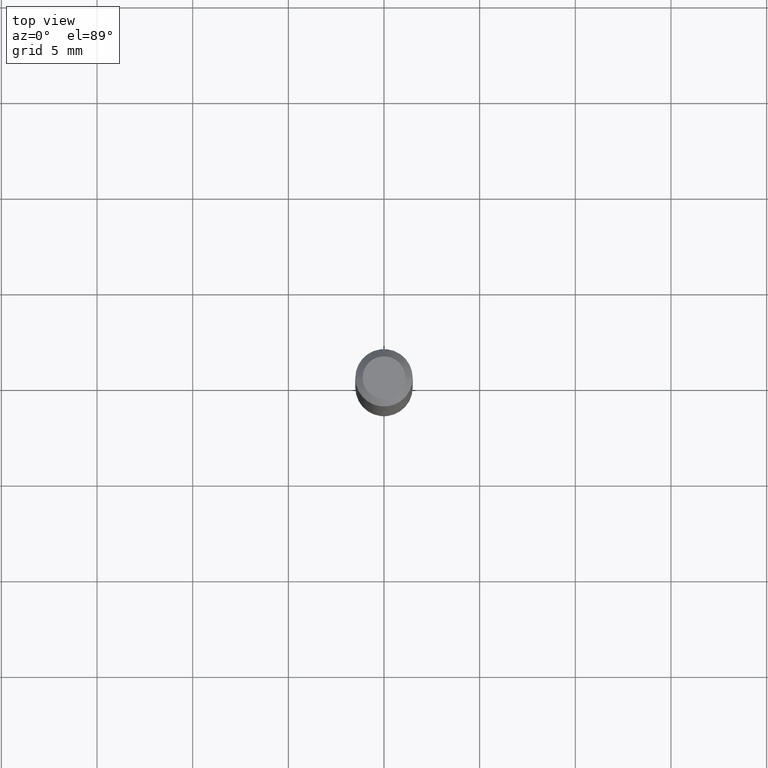
[diagram: clean part render]
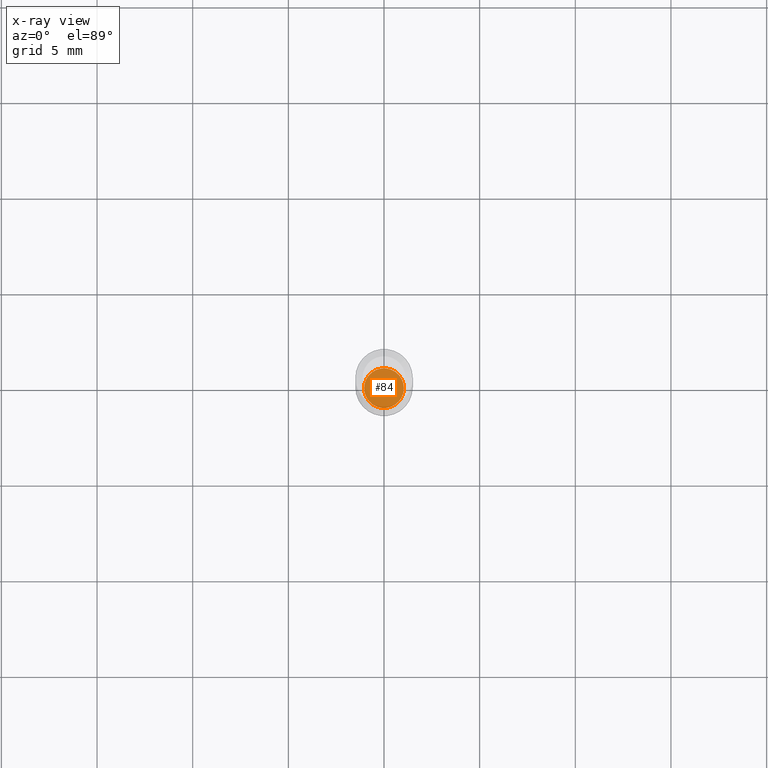
[diagram: x-ray — body ghosted, one internal face saturated and labeled with its STEP entity id]
A machine part, top view, then the same camera in x-ray: the body is ghosted and one INTERNAL B-rep face — a face not visible from any outside direction — is saturated and labeled: STEP entity #84.
In plain terms, the highlighted planar face has unit normal (-0, 0, 1).
Its self-contained STEP definition (entity closure, byte-faithful):
#4 = DIRECTION ( 'NONE',  ( 1.000000000000000000, -6.982962677686261189E-15, 0.000000000000000000 ) ) ;
#18 = ORIENTED_EDGE ( 'NONE', *, *, #231, .F. ) ;
#37 = AXIS2_PLACEMENT_3D ( 'NONE', #149, #181, #291 ) ;
#41 = DIRECTION ( 'NONE',  ( -2.445468806185136597E-29, 3.491481338843145583E-15, 1.000000000000000000 ) ) ;
#69 = CIRCLE ( 'NONE', #130, 0.04084999999999999742 ) ;
#84 = ADVANCED_FACE ( 'NONE', ( #85 ), #320, .F. ) ;
#85 = FACE_OUTER_BOUND ( 'NONE', #339, .T. ) ;
#130 = AXIS2_PLACEMENT_3D ( 'NONE', #220, #41, #4 ) ;
#133 = VERTEX_POINT ( 'NONE', #368 ) ;
#149 = CARTESIAN_POINT ( 'NONE',  ( 3.052189616999668325E-29, -4.357717859010129180E-15, -1.248099999999999765 ) ) ;
#181 = DIRECTION ( 'NONE',  ( -2.438088387897960049E-29, 3.491481338843145188E-15, 1.000000000000000000 ) ) ;
#197 = DIRECTION ( 'NONE',  ( 1.000000000000000000, -6.982962677686261189E-15, 0.000000000000000000 ) ) ;
#198 = VERTEX_POINT ( 'NONE', #256 ) ;
#220 = CARTESIAN_POINT ( 'NONE',  ( 3.052189616999668325E-29, -4.357717859010129180E-15, -1.248099999999999765 ) ) ;
#231 = EDGE_CURVE ( 'NONE', #198, #133, #69, .T. ) ;
#256 = CARTESIAN_POINT ( 'NONE',  ( 0.04084999999999999742, -4.642971884393613118E-15, -1.248099999999999765 ) ) ;
#259 = CIRCLE ( 'NONE', #411, 0.04084999999999999742 ) ;
#291 = DIRECTION ( 'NONE',  ( 1.000000000000000000, -6.982962677686265922E-15, 4.876176775795935793E-29 ) ) ;
#320 = PLANE ( 'NONE',  #37 ) ;
#332 = DIRECTION ( 'NONE',  ( -2.445468806185136597E-29, 3.491481338843145583E-15, 1.000000000000000000 ) ) ;
#339 = EDGE_LOOP ( 'NONE', ( #18, #445 ) ) ;
#344 = EDGE_CURVE ( 'NONE', #133, #198, #259, .T. ) ;
#368 = CARTESIAN_POINT ( 'NONE',  ( -0.04084999999999999742, -4.064811924278019044E-15, -1.248099999999999765 ) ) ;
#377 = CARTESIAN_POINT ( 'NONE',  ( 3.052189616999668325E-29, -4.357717859010129180E-15, -1.248099999999999765 ) ) ;
#411 = AXIS2_PLACEMENT_3D ( 'NONE', #377, #332, #197 ) ;
#445 = ORIENTED_EDGE ( 'NONE', *, *, #344, .F. ) ;